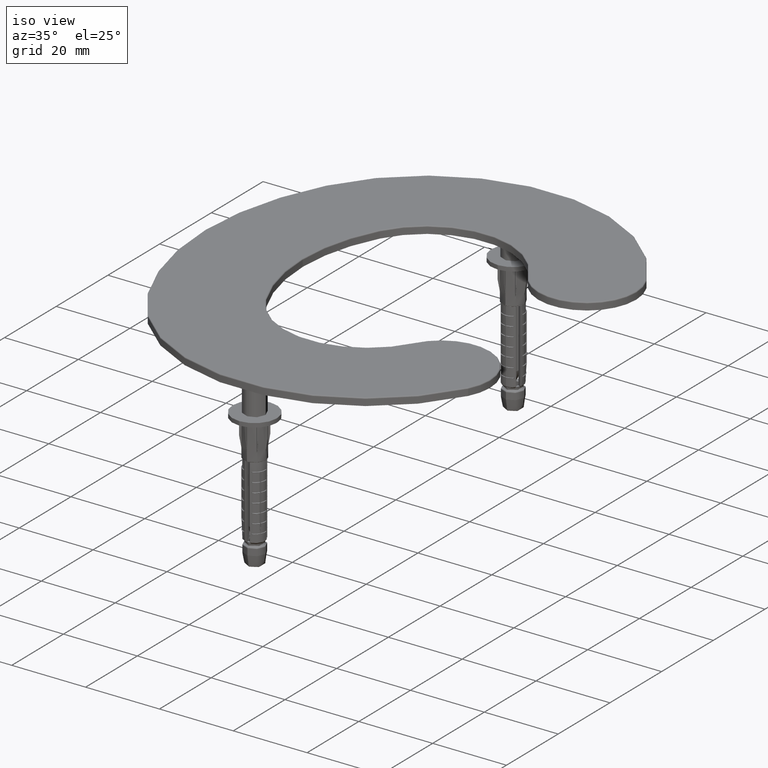
[diagram: clean part render]
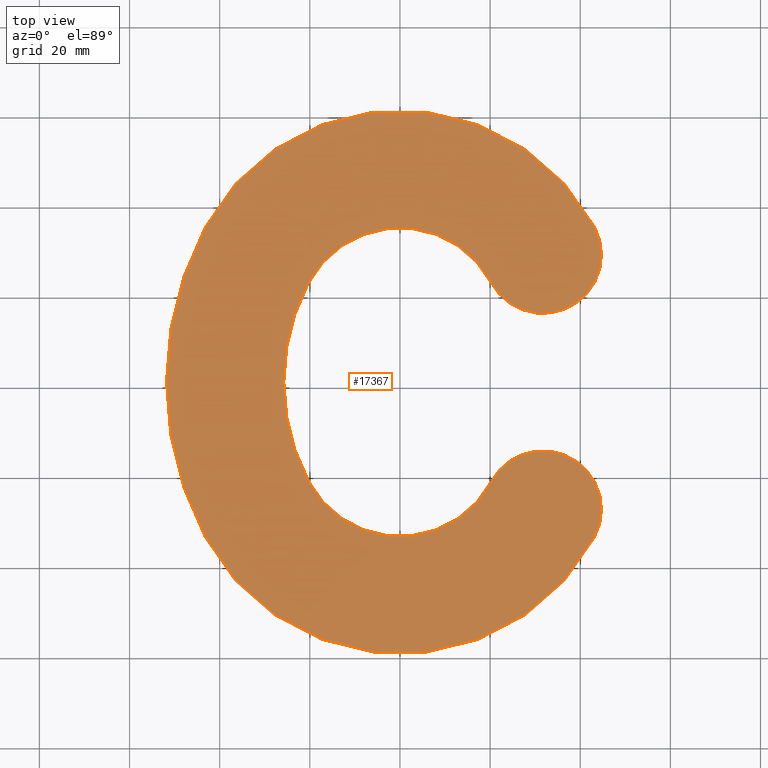
[diagram: tour spotlight — one face highlighted and labeled with its STEP entity id]
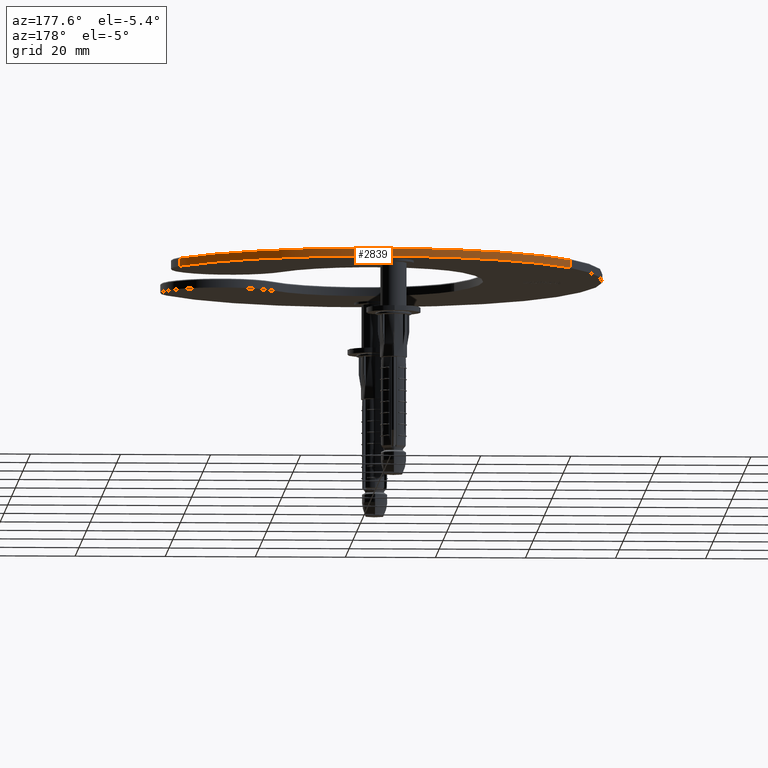
[diagram: tour spotlight — one face highlighted and labeled with its STEP entity id]
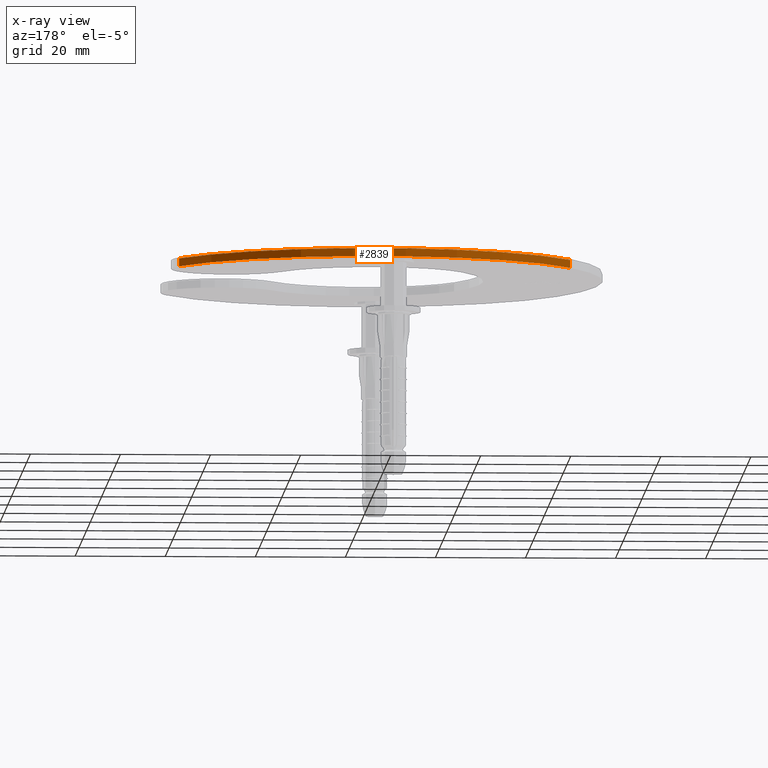
[diagram: x-ray of the same camera — body ghosted, this tour face saturated]
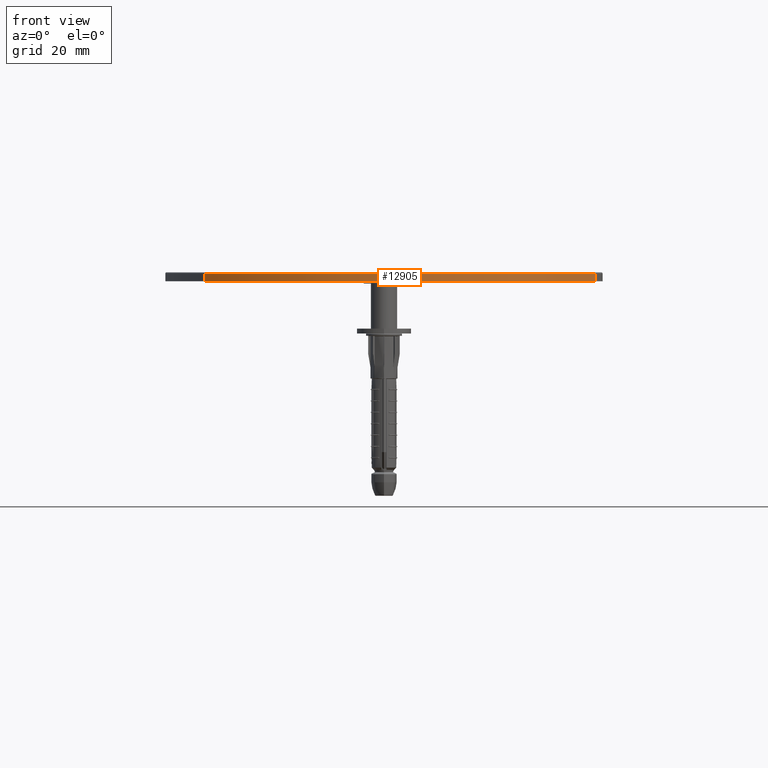
[diagram: tour spotlight — one face highlighted and labeled with its STEP entity id]
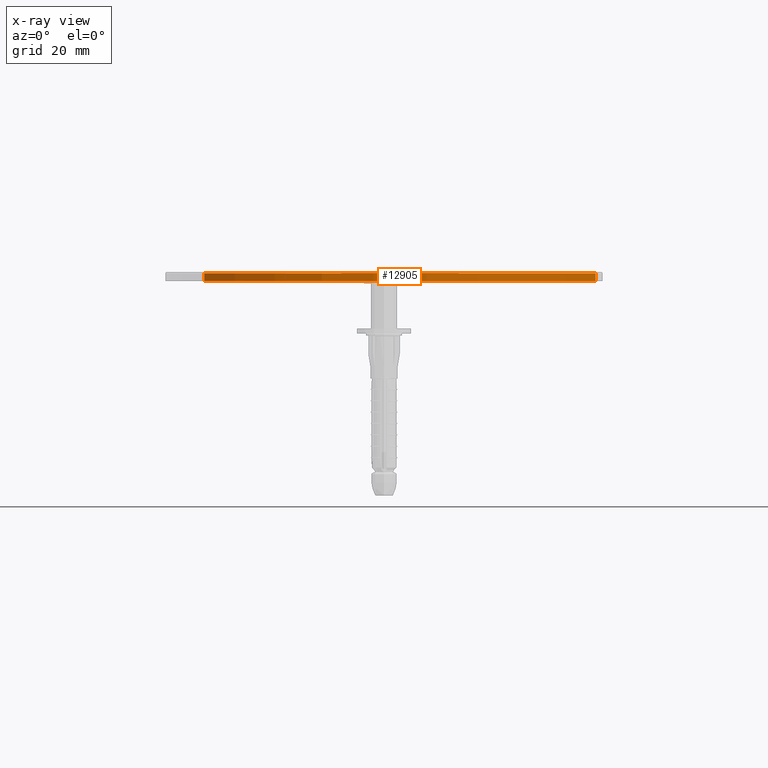
[diagram: x-ray of the same camera — body ghosted, this tour face saturated]
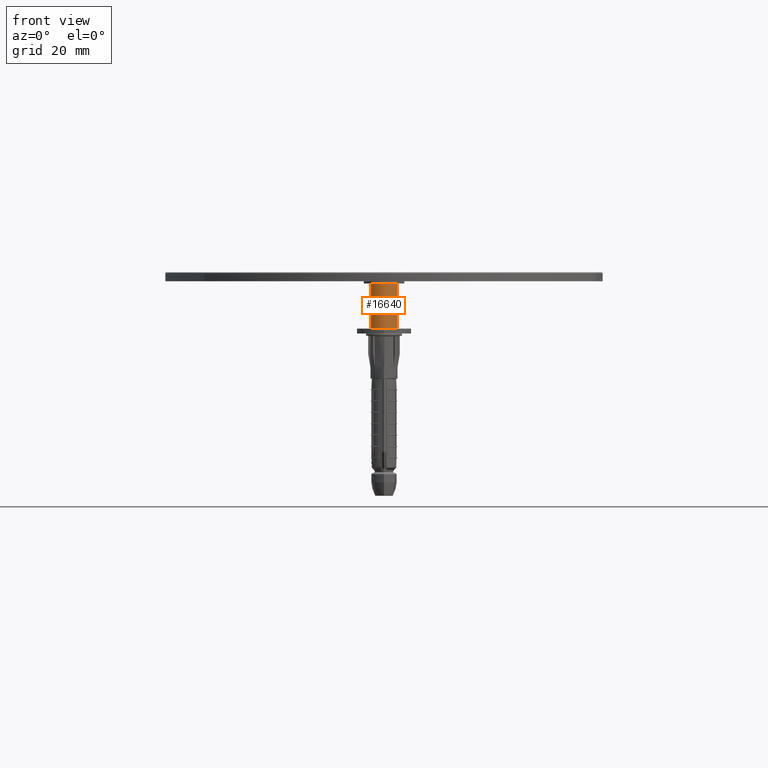
[diagram: tour spotlight — one face highlighted and labeled with its STEP entity id]
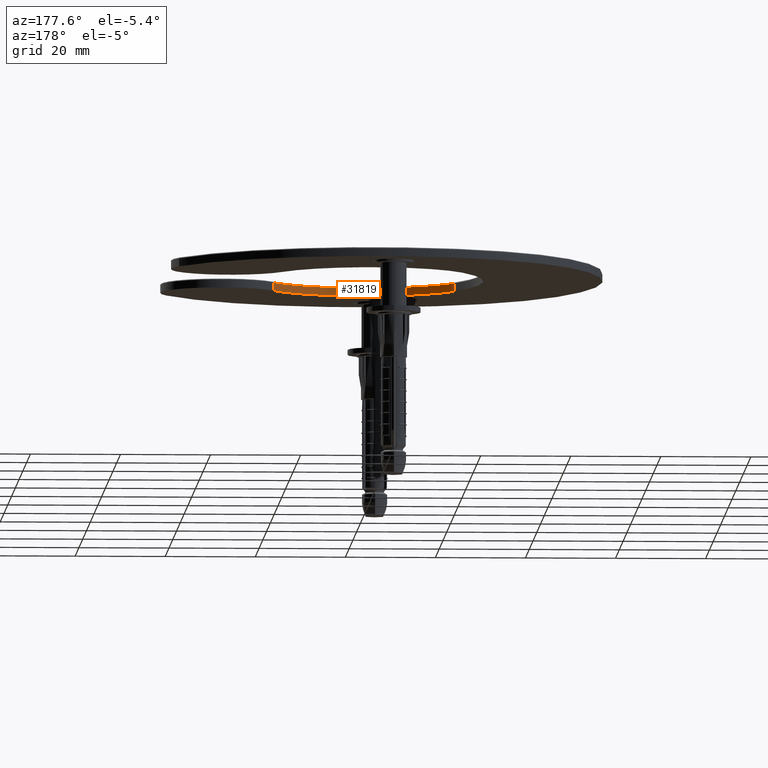
[diagram: tour spotlight — one face highlighted and labeled with its STEP entity id]
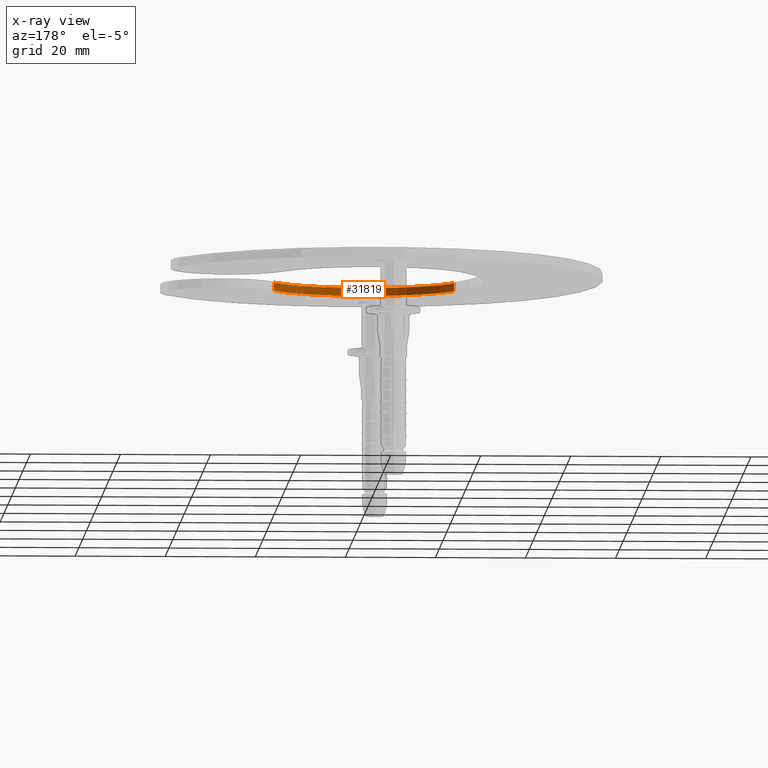
[diagram: x-ray of the same camera — body ghosted, this tour face saturated]
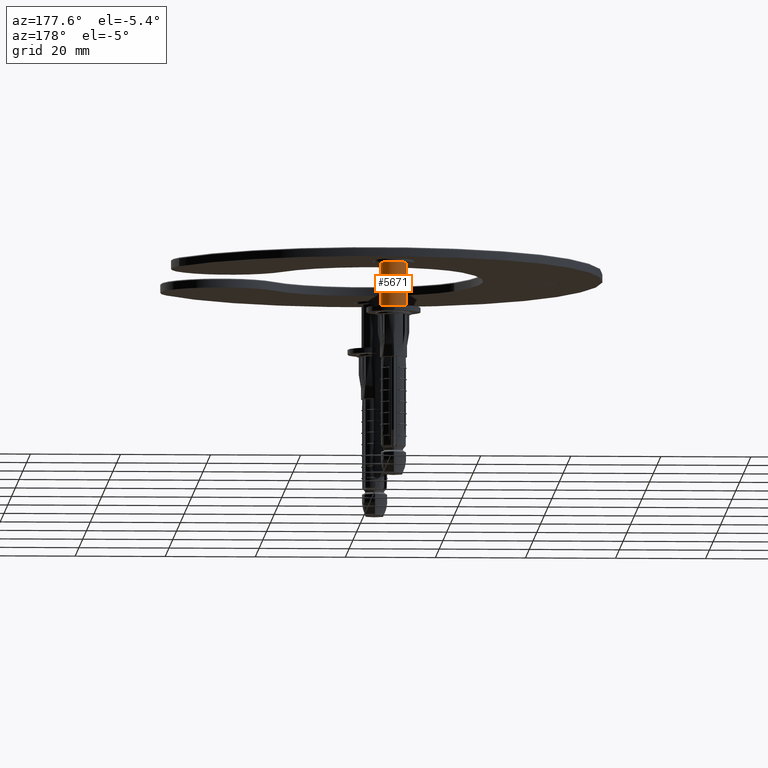
[diagram: tour spotlight — one face highlighted and labeled with its STEP entity id]
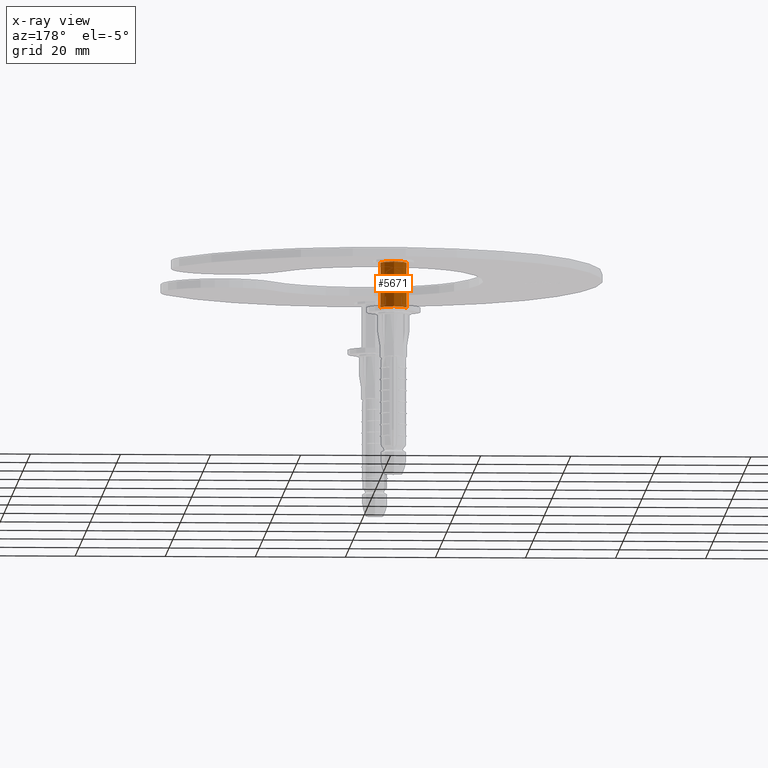
[diagram: x-ray of the same camera — body ghosted, this tour face saturated]
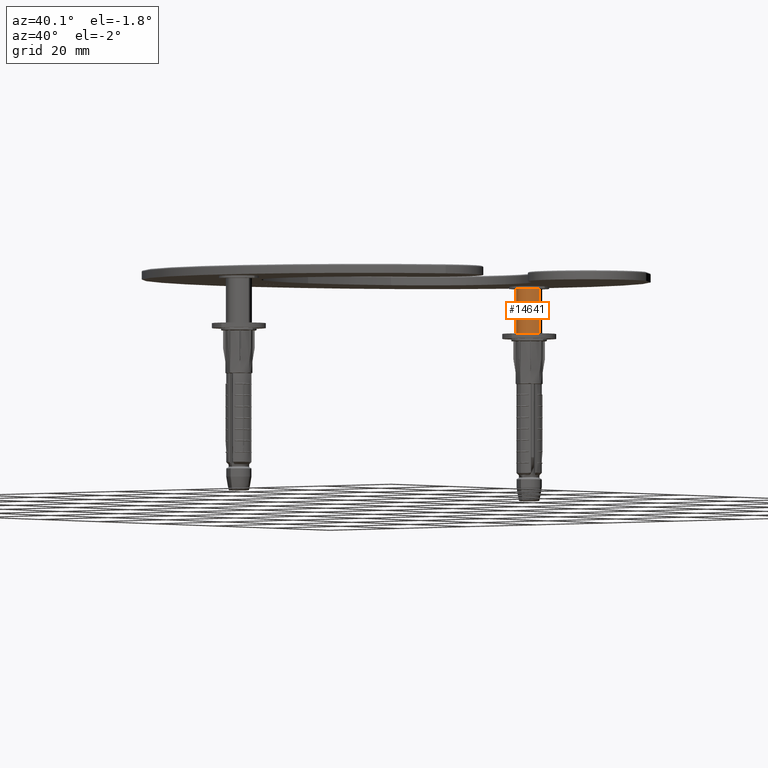
[diagram: tour spotlight — one face highlighted and labeled with its STEP entity id]
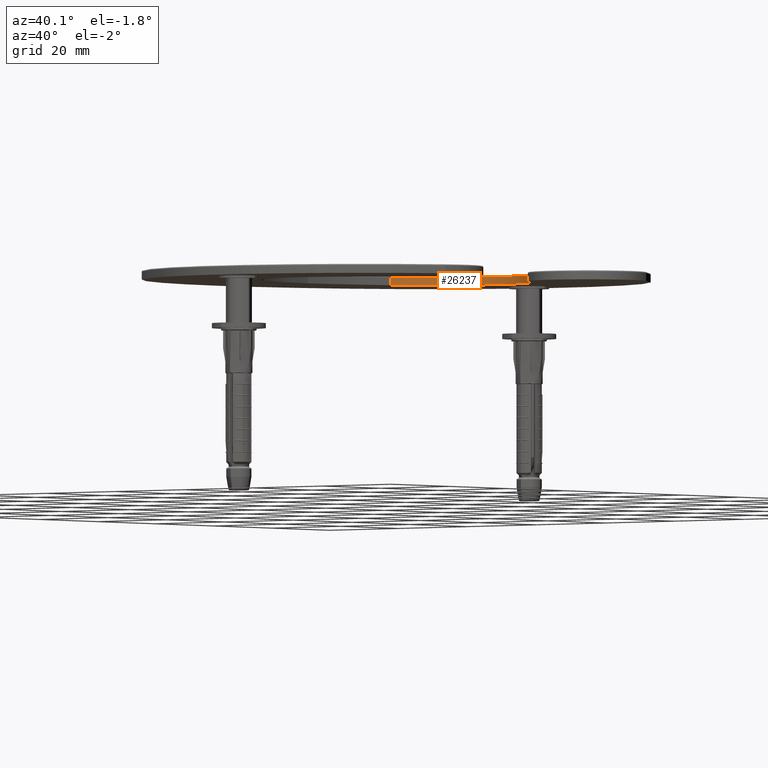
[diagram: tour spotlight — one face highlighted and labeled with its STEP entity id]
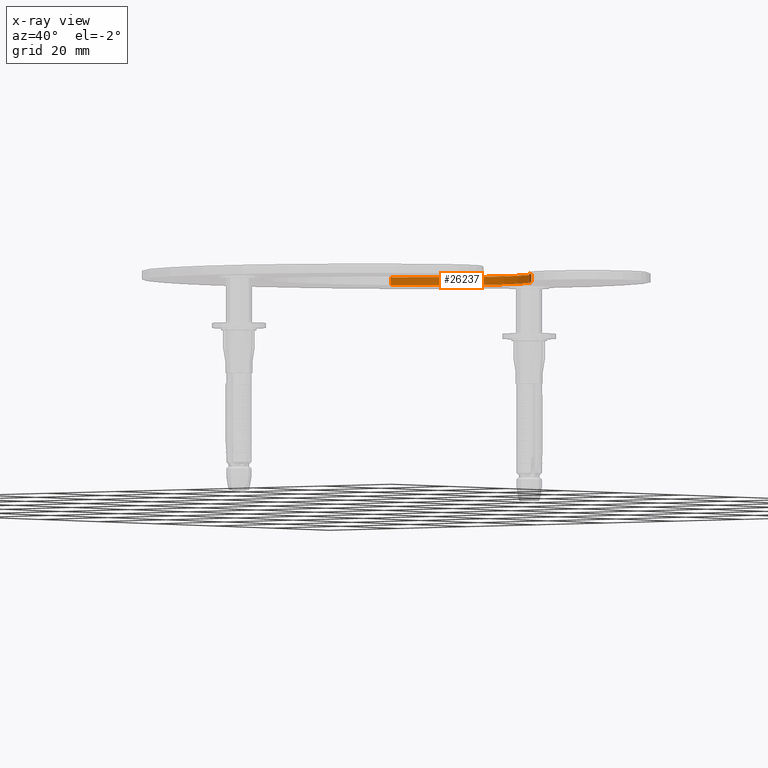
[diagram: x-ray of the same camera — body ghosted, this tour face saturated]
A machine part: a face-by-face anatomy tour. The part has 1552 B-rep faces; the first image is the clean iso view, then the 8 largest visible faces are spotlighted one at a time (largest first), each with its STEP entity span.

Face 1 — top view, entity #17367. In plain terms, the highlighted planar face has unit normal (0, 0, -1).
Definition (entity closure, byte-faithful):
#426 = EDGE_CURVE ( 'NONE', #1788, #738, #4415, .T. ) ;
#738 = VERTEX_POINT ( 'NONE', #26664 ) ;
#928 = EDGE_CURVE ( 'NONE', #25751, #23482, #12510, .T. ) ;
#981 = EDGE_LOOP ( 'NONE', ( #20586, #18401, #36317, #28207, #15869, #22467, #10876, #22206, #9181, #28675 ) ) ;
#1092 = CIRCLE ( 'NONE', #29873, 48.96074257467843438 ) ;
#1372 = AXIS2_PLACEMENT_3D ( 'NONE', #22003, #9933, #10338 ) ;
#1729 = DIRECTION ( 'NONE',  ( -0.000000000000000000, -0.000000000000000000, -1.000000000000000000 ) ) ;
#1788 = VERTEX_POINT ( 'NONE', #27625 ) ;
#2491 = EDGE_CURVE ( 'NONE', #23482, #14806, #1092, .T. ) ;
#3078 = DIRECTION ( 'NONE',  ( -1.000000000000000000, 0.000000000000000000, 0.000000000000000000 ) ) ;
#3381 = AXIS2_PLACEMENT_3D ( 'NONE', #30363, #18263, #12496 ) ;
#3480 = DIRECTION ( 'NONE',  ( -0.000000000000000000, 0.000000000000000000, -1.000000000000000000 ) ) ;
#3534 = CARTESIAN_POINT ( 'NONE',  ( 21.10635924224065008, 60.50000000000001421, 2.000000000000000000 ) ) ;
#4415 = CIRCLE ( 'NONE', #14483, 46.89660967152064330 ) ;
#5118 = DIRECTION ( 'NONE',  ( 0.000000000000000000, 0.000000000000000000, 1.000000000000000000 ) ) ;
#6224 = DIRECTION ( 'NONE',  ( -0.000000000000000000, -0.000000000000000000, -1.000000000000000000 ) ) ;
#6234 = AXIS2_PLACEMENT_3D ( 'NONE', #27234, #27752, #10925 ) ;
#6415 = DIRECTION ( 'NONE',  ( 0.000000000000000000, 0.000000000000000000, 1.000000000000000000 ) ) ;
#6528 = AXIS2_PLACEMENT_3D ( 'NONE', #19852, #31956, #13953 ) ;
#7324 = CARTESIAN_POINT ( 'NONE',  ( 43.17299295517751290, 94.88139878891368539, 2.000000000000000000 ) ) ;
#7932 = AXIS2_PLACEMENT_3D ( 'NONE', #22536, #1729, #25402 ) ;
#8994 = DIRECTION ( 'NONE',  ( -0.000000000000000000, -0.000000000000000000, -1.000000000000000000 ) ) ;
#9181 = ORIENTED_EDGE ( 'NONE', *, *, #37548, .T. ) ;
#9933 = DIRECTION ( 'NONE',  ( 0.000000000000000000, 0.000000000000000000, 1.000000000000000000 ) ) ;
#10338 = DIRECTION ( 'NONE',  ( -1.000000000000000000, 0.000000000000000000, 0.000000000000000000 ) ) ;
#10876 = ORIENTED_EDGE ( 'NONE', *, *, #14356, .T. ) ;
#10925 = DIRECTION ( 'NONE',  ( -1.000000000000000000, 0.000000000000000000, 0.000000000000000000 ) ) ;
#10998 = CIRCLE ( 'NONE', #7932, 46.89660967152064330 ) ;
#11091 = DIRECTION ( 'NONE',  ( -1.000000000000000000, -1.700683495963778800E-15, 0.000000000000000000 ) ) ;
#11364 = CIRCLE ( 'NONE', #3381, 22.96074257467839530 ) ;
#11486 = CIRCLE ( 'NONE', #6528, 72.89660967152070725 ) ;
#11497 = CARTESIAN_POINT ( 'NONE',  ( -43.17299295517753421, 26.11860121108634658, 2.000000000000000000 ) ) ;
#12354 = VERTEX_POINT ( 'NONE', #11497 ) ;
#12496 = DIRECTION ( 'NONE',  ( -1.000000000000000000, 0.000000000000000000, 0.000000000000000000 ) ) ;
#12510 = CIRCLE ( 'NONE', #23292, 13.00000000000000533 ) ;
#12778 = CARTESIAN_POINT ( 'NONE',  ( -43.17299295517752711, 94.88139878891365697, 2.000000000000000000 ) ) ;
#13908 = CARTESIAN_POINT ( 'NONE',  ( 20.24650618626254328, 82.61860121108632882, 2.000000000000000000 ) ) ;
#13953 = DIRECTION ( 'NONE',  ( -1.000000000000000000, -2.665268387444736658E-15, 0.000000000000000000 ) ) ;
#14356 = EDGE_CURVE ( 'NONE', #15458, #31508, #24094, .T. ) ;
#14483 = AXIS2_PLACEMENT_3D ( 'NONE', #3534, #8994, #27250 ) ;
#14706 = AXIS2_PLACEMENT_3D ( 'NONE', #21560, #6415, #33661 ) ;
#14806 = VERTEX_POINT ( 'NONE', #12778 ) ;
#14934 = CARTESIAN_POINT ( 'NONE',  ( 43.17299295517751290, 26.11860121108630395, 2.000000000000000000 ) ) ;
#15458 = VERTEX_POINT ( 'NONE', #14934 ) ;
#15861 = DIRECTION ( 'NONE',  ( -1.000000000000000000, 0.000000000000000000, 0.000000000000000000 ) ) ;
#15869 = ORIENTED_EDGE ( 'NONE', *, *, #34140, .T. ) ;
#17367 = ADVANCED_FACE ( 'NONE', ( #28576 ), #33631, .F. ) ;
#18263 = DIRECTION ( 'NONE',  ( -0.000000000000000000, -0.000000000000000000, -1.000000000000000000 ) ) ;
#18332 = VERTEX_POINT ( 'NONE', #33666 ) ;
#18401 = ORIENTED_EDGE ( 'NONE', *, *, #928, .T. ) ;
#18995 = DIRECTION ( 'NONE',  ( 0.000000000000000000, 0.000000000000000000, 1.000000000000000000 ) ) ;
#19852 = CARTESIAN_POINT ( 'NONE',  ( 21.10635924224065008, 60.50000000000001421, 2.000000000000000000 ) ) ;
#20350 = CARTESIAN_POINT ( 'NONE',  ( 20.24650618626257526, 38.38139878891366408, 2.000000000000000000 ) ) ;
#20522 = CARTESIAN_POINT ( 'NONE',  ( -4.963100635827628301E-21, 71.78925742532157983, 2.000000000000000000 ) ) ;
#20586 = ORIENTED_EDGE ( 'NONE', *, *, #25529, .T. ) ;
#21560 = CARTESIAN_POINT ( 'NONE',  ( -4.963100635827628301E-21, 49.21074257467843438, 2.000000000000000000 ) ) ;
#21785 = CARTESIAN_POINT ( 'NONE',  ( 31.70974957072004941, 88.75000000000000000, 2.000000000000000000 ) ) ;
#22003 = CARTESIAN_POINT ( 'NONE',  ( 31.70974957072005651, 32.25000000000000000, 2.000000000000000000 ) ) ;
#22206 = ORIENTED_EDGE ( 'NONE', *, *, #31605, .T. ) ;
#22467 = ORIENTED_EDGE ( 'NONE', *, *, #23170, .T. ) ;
#22536 = CARTESIAN_POINT ( 'NONE',  ( 21.10635924224065008, 60.50000000000001421, 2.000000000000000000 ) ) ;
#23098 = AXIS2_PLACEMENT_3D ( 'NONE', #29945, #6224, #3078 ) ;
#23170 = EDGE_CURVE ( 'NONE', #12354, #15458, #27007, .T. ) ;
#23292 = AXIS2_PLACEMENT_3D ( 'NONE', #21785, #18995, #37296 ) ;
#23482 = VERTEX_POINT ( 'NONE', #7324 ) ;
#24094 = CIRCLE ( 'NONE', #1372, 13.00000000000000533 ) ;
#25053 = CARTESIAN_POINT ( 'NONE',  ( 15.85487478536002470, 80.26962871266078992, 2.000000000000000000 ) ) ;
#25402 = DIRECTION ( 'NONE',  ( -1.000000000000000000, 0.000000000000000000, 0.000000000000000000 ) ) ;
#25529 = EDGE_CURVE ( 'NONE', #738, #25751, #11364, .T. ) ;
#25751 = VERTEX_POINT ( 'NONE', #13908 ) ;
#26408 = AXIS2_PLACEMENT_3D ( 'NONE', #25053, #3480, #15861 ) ;
#26664 = CARTESIAN_POINT ( 'NONE',  ( -20.24650618626259657, 82.61860121108622934, 2.000000000000000000 ) ) ;
#27007 = CIRCLE ( 'NONE', #14706, 48.96074257467844149 ) ;
#27234 = CARTESIAN_POINT ( 'NONE',  ( 21.10635924224065008, 60.50000000000001421, 2.000000000000000000 ) ) ;
#27250 = DIRECTION ( 'NONE',  ( -1.000000000000000000, 0.000000000000000000, 0.000000000000000000 ) ) ;
#27625 = CARTESIAN_POINT ( 'NONE',  ( -25.79025042927999323, 60.50000000000001421, 2.000000000000000000 ) ) ;
#27752 = DIRECTION ( 'NONE',  ( 0.000000000000000000, 0.000000000000000000, 1.000000000000000000 ) ) ;
#28207 = ORIENTED_EDGE ( 'NONE', *, *, #36836, .T. ) ;
#28576 = FACE_OUTER_BOUND ( 'NONE', #981, .T. ) ;
#28578 = CIRCLE ( 'NONE', #23098, 22.96074257467843083 ) ;
#28675 = ORIENTED_EDGE ( 'NONE', *, *, #426, .T. ) ;
#28725 = VERTEX_POINT ( 'NONE', #34544 ) ;
#29873 = AXIS2_PLACEMENT_3D ( 'NONE', #20522, #5118, #11091 ) ;
#29945 = CARTESIAN_POINT ( 'NONE',  ( -4.963100635827628301E-21, 49.21074257467843438, 2.000000000000000000 ) ) ;
#30347 = CIRCLE ( 'NONE', #6234, 72.89660967152070725 ) ;
#30363 = CARTESIAN_POINT ( 'NONE',  ( -4.963100635827628301E-21, 71.78925742532157983, 2.000000000000000000 ) ) ;
#31508 = VERTEX_POINT ( 'NONE', #20350 ) ;
#31605 = EDGE_CURVE ( 'NONE', #31508, #28725, #28578, .T. ) ;
#31956 = DIRECTION ( 'NONE',  ( 0.000000000000000000, 0.000000000000000000, 1.000000000000000000 ) ) ;
#33631 = PLANE ( 'NONE',  #26408 ) ;
#33661 = DIRECTION ( 'NONE',  ( -1.000000000000000000, 0.000000000000000000, 0.000000000000000000 ) ) ;
#33666 = CARTESIAN_POINT ( 'NONE',  ( -51.79025042928005007, 60.50000000000001421, 2.000000000000000000 ) ) ;
#34140 = EDGE_CURVE ( 'NONE', #18332, #12354, #30347, .T. ) ;
#34544 = CARTESIAN_POINT ( 'NONE',  ( -20.24650618626258236, 38.38139878891367829, 2.000000000000000000 ) ) ;
#36317 = ORIENTED_EDGE ( 'NONE', *, *, #2491, .T. ) ;
#36836 = EDGE_CURVE ( 'NONE', #14806, #18332, #11486, .T. ) ;
#37296 = DIRECTION ( 'NONE',  ( -1.000000000000000000, 0.000000000000000000, 0.000000000000000000 ) ) ;
#37548 = EDGE_CURVE ( 'NONE', #28725, #1788, #10998, .T. ) ;

Face 2 — auxiliary view, entity #2839. An x-ray twin of the same camera follows (body ghosted, this face saturated) — the face is partly hidden behind the body. In plain terms, the highlighted cylindrical surface (partial cylindrical patch) has radius 49.2107 mm, axis along (-0, -0, -1).
Definition (entity closure, byte-faithful):
#1579 = VERTEX_POINT ( 'NONE', #12264 ) ;
#1925 = DIRECTION ( 'NONE',  ( -0.000000000000000000, -0.000000000000000000, -1.000000000000000000 ) ) ;
#2839 = ADVANCED_FACE ( 'NONE', ( #17124 ), #31242, .T. ) ;
#2905 = DIRECTION ( 'NONE',  ( -1.000000000000000000, 0.000000000000000000, 0.000000000000000000 ) ) ;
#3227 = DIRECTION ( 'NONE',  ( 0.000000000000000000, 0.000000000000000000, 1.000000000000000000 ) ) ;
#3542 = LINE ( 'NONE', #10565, #19105 ) ;
#3806 = ORIENTED_EDGE ( 'NONE', *, *, #19621, .F. ) ;
#3900 = AXIS2_PLACEMENT_3D ( 'NONE', #38971, #26600, #2905 ) ;
#4960 = CARTESIAN_POINT ( 'NONE',  ( -43.39343994334019072, 94.99931030408509969, 1.750000000000000000 ) ) ;
#5050 = CIRCLE ( 'NONE', #29899, 49.21074257467843438 ) ;
#7185 = EDGE_CURVE ( 'NONE', #22246, #1579, #24368, .T. ) ;
#7308 = ORIENTED_EDGE ( 'NONE', *, *, #31326, .T. ) ;
#7925 = CARTESIAN_POINT ( 'NONE',  ( 43.39343994334015520, 94.99931030408511390, 2.000000000000000000 ) ) ;
#10565 = CARTESIAN_POINT ( 'NONE',  ( -43.39343994334019072, 94.99931030408509969, 2.000000000000000000 ) ) ;
#10828 = DIRECTION ( 'NONE',  ( -0.000000000000000000, -0.000000000000000000, -1.000000000000000000 ) ) ;
#11055 = ORIENTED_EDGE ( 'NONE', *, *, #37655, .T. ) ;
#11460 = ORIENTED_EDGE ( 'NONE', *, *, #7185, .T. ) ;
#12238 = DIRECTION ( 'NONE',  ( -1.000000000000000000, 0.000000000000000000, 0.000000000000000000 ) ) ;
#12264 = CARTESIAN_POINT ( 'NONE',  ( -43.39343994334019072, 94.99931030408509969, 0.000000000000000000 ) ) ;
#13915 = DIRECTION ( 'NONE',  ( -1.000000000000000000, 0.000000000000000000, 0.000000000000000000 ) ) ;
#17070 = CARTESIAN_POINT ( 'NONE',  ( -4.963100635827628301E-21, 71.78925742532157983, 1.750000000000000000 ) ) ;
#17124 = FACE_OUTER_BOUND ( 'NONE', #31429, .T. ) ;
#19105 = VECTOR ( 'NONE', #10828, 1000.000000000000000 ) ;
#19621 = EDGE_CURVE ( 'NONE', #22424, #1579, #3542, .T. ) ;
#19700 = VERTEX_POINT ( 'NONE', #19853 ) ;
#19853 = CARTESIAN_POINT ( 'NONE',  ( 43.39343994334015520, 94.99931030408511390, 1.750000000000000000 ) ) ;
#22246 = VERTEX_POINT ( 'NONE', #37588 ) ;
#22424 = VERTEX_POINT ( 'NONE', #4960 ) ;
#23179 = VECTOR ( 'NONE', #28983, 1000.000000000000000 ) ;
#24169 = CARTESIAN_POINT ( 'NONE',  ( -4.963100635827628301E-21, 71.78925742532157983, 0.000000000000000000 ) ) ;
#24368 = CIRCLE ( 'NONE', #31760, 49.21074257467843438 ) ;
#26600 = DIRECTION ( 'NONE',  ( -0.000000000000000000, -0.000000000000000000, -1.000000000000000000 ) ) ;
#28364 = LINE ( 'NONE', #7925, #23179 ) ;
#28983 = DIRECTION ( 'NONE',  ( -0.000000000000000000, -0.000000000000000000, -1.000000000000000000 ) ) ;
#29899 = AXIS2_PLACEMENT_3D ( 'NONE', #17070, #1925, #13915 ) ;
#31242 = CYLINDRICAL_SURFACE ( 'NONE', #3900, 49.21074257467843438 ) ;
#31326 = EDGE_CURVE ( 'NONE', #22424, #19700, #5050, .T. ) ;
#31429 = EDGE_LOOP ( 'NONE', ( #3806, #7308, #11055, #11460 ) ) ;
#31760 = AXIS2_PLACEMENT_3D ( 'NONE', #24169, #3227, #12238 ) ;
#37588 = CARTESIAN_POINT ( 'NONE',  ( 43.39343994334015520, 94.99931030408511390, 0.000000000000000000 ) ) ;
#37655 = EDGE_CURVE ( 'NONE', #19700, #22246, #28364, .T. ) ;
#38971 = CARTESIAN_POINT ( 'NONE',  ( -4.963100635827628301E-21, 71.78925742532157983, 2.000000000000000000 ) ) ;

Face 3 — front view, entity #12905. An x-ray twin of the same camera follows (body ghosted, this face saturated) — the face is partly hidden behind the body. In plain terms, the highlighted cylindrical surface (partial cylindrical patch) has radius 49.2107 mm, axis along (-0, -0, -1).
Definition (entity closure, byte-faithful):
#86 = CARTESIAN_POINT ( 'NONE',  ( -43.39343994334019072, 26.00068969591492163, 2.000000000000000000 ) ) ;
#1053 = ORIENTED_EDGE ( 'NONE', *, *, #25071, .T. ) ;
#1178 = DIRECTION ( 'NONE',  ( -0.000000000000000000, -0.000000000000000000, -1.000000000000000000 ) ) ;
#2892 = CYLINDRICAL_SURFACE ( 'NONE', #22543, 49.21074257467844149 ) ;
#5733 = FACE_OUTER_BOUND ( 'NONE', #34161, .T. ) ;
#7381 = DIRECTION ( 'NONE',  ( -1.000000000000000000, 0.000000000000000000, 0.000000000000000000 ) ) ;
#8033 = AXIS2_PLACEMENT_3D ( 'NONE', #25207, #22211, #10665 ) ;
#8987 = AXIS2_PLACEMENT_3D ( 'NONE', #36817, #30652, #36306 ) ;
#10665 = DIRECTION ( 'NONE',  ( 1.000000000000000000, 0.000000000000000000, 0.000000000000000000 ) ) ;
#12415 = VECTOR ( 'NONE', #22893, 1000.000000000000000 ) ;
#12905 = ADVANCED_FACE ( 'NONE', ( #5733 ), #2892, .T. ) ;
#13659 = CARTESIAN_POINT ( 'NONE',  ( -43.39343994334019072, 26.00068969591492163, 1.750000000000000000 ) ) ;
#16379 = ORIENTED_EDGE ( 'NONE', *, *, #28808, .T. ) ;
#17447 = CARTESIAN_POINT ( 'NONE',  ( 43.39343994334015520, 26.00068969591488610, 1.750000000000000000 ) ) ;
#17871 = ORIENTED_EDGE ( 'NONE', *, *, #36847, .F. ) ;
#18426 = EDGE_CURVE ( 'NONE', #36619, #29508, #24804, .T. ) ;
#20114 = VERTEX_POINT ( 'NONE', #17447 ) ;
#22211 = DIRECTION ( 'NONE',  ( 0.000000000000000000, 0.000000000000000000, 1.000000000000000000 ) ) ;
#22493 = ORIENTED_EDGE ( 'NONE', *, *, #18426, .T. ) ;
#22543 = AXIS2_PLACEMENT_3D ( 'NONE', #28316, #1178, #7381 ) ;
#22893 = DIRECTION ( 'NONE',  ( -0.000000000000000000, -0.000000000000000000, -1.000000000000000000 ) ) ;
#24804 = CIRCLE ( 'NONE', #8033, 49.21074257467844149 ) ;
#24994 = CIRCLE ( 'NONE', #8987, 49.21074257467844149 ) ;
#25071 = EDGE_CURVE ( 'NONE', #20114, #31403, #24994, .T. ) ;
#25207 = CARTESIAN_POINT ( 'NONE',  ( -4.963100635827628301E-21, 49.21074257467843438, 0.000000000000000000 ) ) ;
#26332 = CARTESIAN_POINT ( 'NONE',  ( -43.39343994334019072, 26.00068969591492163, 0.000000000000000000 ) ) ;
#28023 = CARTESIAN_POINT ( 'NONE',  ( 43.39343994334015520, 26.00068969591488610, 2.000000000000000000 ) ) ;
#28205 = VECTOR ( 'NONE', #33194, 1000.000000000000000 ) ;
#28316 = CARTESIAN_POINT ( 'NONE',  ( -4.963100635827628301E-21, 49.21074257467843438, 2.000000000000000000 ) ) ;
#28402 = LINE ( 'NONE', #28023, #12415 ) ;
#28808 = EDGE_CURVE ( 'NONE', #31403, #36619, #31972, .T. ) ;
#29508 = VERTEX_POINT ( 'NONE', #34472 ) ;
#30652 = DIRECTION ( 'NONE',  ( -0.000000000000000000, -0.000000000000000000, -1.000000000000000000 ) ) ;
#31403 = VERTEX_POINT ( 'NONE', #13659 ) ;
#31972 = LINE ( 'NONE', #86, #28205 ) ;
#33194 = DIRECTION ( 'NONE',  ( -0.000000000000000000, -0.000000000000000000, -1.000000000000000000 ) ) ;
#34161 = EDGE_LOOP ( 'NONE', ( #17871, #1053, #16379, #22493 ) ) ;
#34472 = CARTESIAN_POINT ( 'NONE',  ( 43.39343994334015520, 26.00068969591488610, 0.000000000000000000 ) ) ;
#36306 = DIRECTION ( 'NONE',  ( -1.000000000000000000, 0.000000000000000000, 0.000000000000000000 ) ) ;
#36619 = VERTEX_POINT ( 'NONE', #26332 ) ;
#36817 = CARTESIAN_POINT ( 'NONE',  ( -4.963100635827628301E-21, 49.21074257467843438, 1.750000000000000000 ) ) ;
#36847 = EDGE_CURVE ( 'NONE', #20114, #29508, #28402, .T. ) ;

Face 4 — front view, entity #16640. In plain terms, the highlighted cylindrical surface (edge-blend (fillet) strip) has radius 2.9 mm, axis along (0, 0, 1).
Definition (entity closure, byte-faithful):
#806 = VECTOR ( 'NONE', #9659, 1000.000000000000000 ) ;
#1212 = VERTEX_POINT ( 'NONE', #36213 ) ;
#1243 = DIRECTION ( 'NONE',  ( -0.000000000000000000, -0.000000000000000000, 1.000000000000000000 ) ) ;
#1647 = CARTESIAN_POINT ( 'NONE',  ( -0.6402504292799884311, 10.50000000000000888, -10.50000000000000000 ) ) ;
#2036 = LINE ( 'NONE', #1647, #18495 ) ;
#2385 = DIRECTION ( 'NONE',  ( -1.000000000000000000, 0.000000000000000000, 0.000000000000000000 ) ) ;
#2794 = FACE_OUTER_BOUND ( 'NONE', #13183, .T. ) ;
#6760 = EDGE_CURVE ( 'NONE', #1212, #18670, #36599, .T. ) ;
#7388 = ORIENTED_EDGE ( 'NONE', *, *, #37191, .T. ) ;
#7657 = DIRECTION ( 'NONE',  ( 0.000000000000000000, 0.000000000000000000, -1.000000000000000000 ) ) ;
#7820 = EDGE_CURVE ( 'NONE', #18670, #19438, #25249, .T. ) ;
#9659 = DIRECTION ( 'NONE',  ( -0.000000000000000000, -0.000000000000000000, 1.000000000000000000 ) ) ;
#10848 = CYLINDRICAL_SURFACE ( 'NONE', #28889, 2.899999999999999911 ) ;
#13183 = EDGE_LOOP ( 'NONE', ( #23224, #23531, #7388, #37318 ) ) ;
#15094 = CARTESIAN_POINT ( 'NONE',  ( -6.440250429279988253, 10.50000000000000888, -10.50000000000000000 ) ) ;
#16640 = ADVANCED_FACE ( 'NONE', ( #2794 ), #10848, .T. ) ;
#16878 = EDGE_CURVE ( 'NONE', #27325, #19438, #30088, .T. ) ;
#18495 = VECTOR ( 'NONE', #1243, 1000.000000000000000 ) ;
#18580 = CARTESIAN_POINT ( 'NONE',  ( -6.440250429279988253, 10.50000000000000888, -10.50000000000000000 ) ) ;
#18670 = VERTEX_POINT ( 'NONE', #15094 ) ;
#19116 = CARTESIAN_POINT ( 'NONE',  ( -0.6402504292799884311, 10.50000000000000888, -0.5000000000000000000 ) ) ;
#19438 = VERTEX_POINT ( 'NONE', #38972 ) ;
#23063 = CARTESIAN_POINT ( 'NONE',  ( -3.540250429279988342, 10.50000000000000888, -10.50000000000000000 ) ) ;
#23224 = ORIENTED_EDGE ( 'NONE', *, *, #7820, .F. ) ;
#23531 = ORIENTED_EDGE ( 'NONE', *, *, #6760, .F. ) ;
#23930 = AXIS2_PLACEMENT_3D ( 'NONE', #32116, #35151, #2385 ) ;
#25249 = LINE ( 'NONE', #18580, #806 ) ;
#26199 = DIRECTION ( 'NONE',  ( 1.000000000000000000, 0.000000000000000000, 0.000000000000000000 ) ) ;
#27325 = VERTEX_POINT ( 'NONE', #19116 ) ;
#28654 = AXIS2_PLACEMENT_3D ( 'NONE', #28736, #7657, #28859 ) ;
#28736 = CARTESIAN_POINT ( 'NONE',  ( -3.540250429279988342, 10.50000000000000888, -0.5000000000000000000 ) ) ;
#28859 = DIRECTION ( 'NONE',  ( -1.000000000000000000, 0.000000000000000000, 0.000000000000000000 ) ) ;
#28889 = AXIS2_PLACEMENT_3D ( 'NONE', #23063, #32111, #26199 ) ;
#30088 = CIRCLE ( 'NONE', #28654, 2.899999999999999911 ) ;
#32111 = DIRECTION ( 'NONE',  ( -0.000000000000000000, -0.000000000000000000, 1.000000000000000000 ) ) ;
#32116 = CARTESIAN_POINT ( 'NONE',  ( -3.540250429279988342, 10.50000000000000888, -10.50000000000000000 ) ) ;
#35151 = DIRECTION ( 'NONE',  ( 0.000000000000000000, 0.000000000000000000, -1.000000000000000000 ) ) ;
#36213 = CARTESIAN_POINT ( 'NONE',  ( -0.6402504292799884311, 10.50000000000000888, -10.50000000000000000 ) ) ;
#36599 = CIRCLE ( 'NONE', #23930, 2.899999999999999911 ) ;
#37191 = EDGE_CURVE ( 'NONE', #1212, #27325, #2036, .T. ) ;
#37318 = ORIENTED_EDGE ( 'NONE', *, *, #16878, .T. ) ;
#38972 = CARTESIAN_POINT ( 'NONE',  ( -6.440250429279988253, 10.50000000000000888, -0.5000000000000000000 ) ) ;

Face 5 — auxiliary view, entity #31819. An x-ray twin of the same camera follows (body ghosted, this face saturated) — the face is partly hidden behind the body. In plain terms, the highlighted cylindrical surface (partial cylindrical patch) has radius 22.7107 mm, axis along (-0, -0, -1).
Definition (entity closure, byte-faithful):
#2031 = CIRCLE ( 'NONE', #11685, 22.71074257467843083 ) ;
#3508 = EDGE_CURVE ( 'NONE', #27558, #37876, #33995, .T. ) ;
#4162 = DIRECTION ( 'NONE',  ( -0.000000000000000000, -0.000000000000000000, -1.000000000000000000 ) ) ;
#4314 = CARTESIAN_POINT ( 'NONE',  ( -20.02605919809994006, 38.49931030408509969, 0.000000000000000000 ) ) ;
#4773 = EDGE_LOOP ( 'NONE', ( #13101, #31276, #21224, #8409 ) ) ;
#5771 = EDGE_CURVE ( 'NONE', #17698, #27558, #17465, .T. ) ;
#6144 = VECTOR ( 'NONE', #33884, 1000.000000000000000 ) ;
#6681 = AXIS2_PLACEMENT_3D ( 'NONE', #37326, #4162, #25196 ) ;
#6807 = CARTESIAN_POINT ( 'NONE',  ( 20.02605919809992940, 38.49931030408507837, 2.000000000000000000 ) ) ;
#7088 = DIRECTION ( 'NONE',  ( -0.000000000000000000, -0.000000000000000000, -1.000000000000000000 ) ) ;
#8409 = ORIENTED_EDGE ( 'NONE', *, *, #3508, .T. ) ;
#9024 = CARTESIAN_POINT ( 'NONE',  ( 20.02605919809992940, 38.49931030408507837, 0.000000000000000000 ) ) ;
#9476 = VECTOR ( 'NONE', #7088, 1000.000000000000000 ) ;
#11685 = AXIS2_PLACEMENT_3D ( 'NONE', #35482, #32844, #35361 ) ;
#11706 = EDGE_CURVE ( 'NONE', #17841, #17698, #2031, .T. ) ;
#13101 = ORIENTED_EDGE ( 'NONE', *, *, #14044, .F. ) ;
#14044 = EDGE_CURVE ( 'NONE', #17841, #37876, #34435, .T. ) ;
#17465 = LINE ( 'NONE', #6807, #9476 ) ;
#17698 = VERTEX_POINT ( 'NONE', #29856 ) ;
#17841 = VERTEX_POINT ( 'NONE', #27230 ) ;
#18189 = FACE_OUTER_BOUND ( 'NONE', #4773, .T. ) ;
#18667 = CYLINDRICAL_SURFACE ( 'NONE', #29666, 22.71074257467843083 ) ;
#21224 = ORIENTED_EDGE ( 'NONE', *, *, #5771, .T. ) ;
#22169 = CARTESIAN_POINT ( 'NONE',  ( -20.02605919809994006, 38.49931030408509969, 2.000000000000000000 ) ) ;
#25196 = DIRECTION ( 'NONE',  ( 1.000000000000000000, 0.000000000000000000, 0.000000000000000000 ) ) ;
#26084 = DIRECTION ( 'NONE',  ( -0.000000000000000000, -0.000000000000000000, -1.000000000000000000 ) ) ;
#27230 = CARTESIAN_POINT ( 'NONE',  ( -20.02605919809994006, 38.49931030408509969, 1.750000000000000000 ) ) ;
#27558 = VERTEX_POINT ( 'NONE', #9024 ) ;
#28996 = DIRECTION ( 'NONE',  ( -1.000000000000000000, 0.000000000000000000, 0.000000000000000000 ) ) ;
#29666 = AXIS2_PLACEMENT_3D ( 'NONE', #32007, #26084, #28996 ) ;
#29856 = CARTESIAN_POINT ( 'NONE',  ( 20.02605919809992940, 38.49931030408507837, 1.750000000000000000 ) ) ;
#31276 = ORIENTED_EDGE ( 'NONE', *, *, #11706, .T. ) ;
#31819 = ADVANCED_FACE ( 'NONE', ( #18189 ), #18667, .F. ) ;
#32007 = CARTESIAN_POINT ( 'NONE',  ( -4.963100635827628301E-21, 49.21074257467843438, 2.000000000000000000 ) ) ;
#32844 = DIRECTION ( 'NONE',  ( 0.000000000000000000, 0.000000000000000000, 1.000000000000000000 ) ) ;
#33884 = DIRECTION ( 'NONE',  ( -0.000000000000000000, -0.000000000000000000, -1.000000000000000000 ) ) ;
#33995 = CIRCLE ( 'NONE', #6681, 22.71074257467843083 ) ;
#34435 = LINE ( 'NONE', #22169, #6144 ) ;
#35361 = DIRECTION ( 'NONE',  ( -1.000000000000000000, 0.000000000000000000, 0.000000000000000000 ) ) ;
#35482 = CARTESIAN_POINT ( 'NONE',  ( -4.963100635827628301E-21, 49.21074257467843438, 1.750000000000000000 ) ) ;
#37326 = CARTESIAN_POINT ( 'NONE',  ( -4.963100635827628301E-21, 49.21074257467843438, 0.000000000000000000 ) ) ;
#37876 = VERTEX_POINT ( 'NONE', #4314 ) ;

Face 6 — auxiliary view, entity #5671. An x-ray twin of the same camera follows (body ghosted, this face saturated) — the face is partly hidden behind the body. In plain terms, the highlighted cylindrical surface (edge-blend (fillet) strip) has radius 2.9 mm, axis along (0, 0, 1).
Definition (entity closure, byte-faithful):
#501 = CARTESIAN_POINT ( 'NONE',  ( -6.440250429279988253, 110.5000000000000142, -10.50000000000000000 ) ) ;
#2370 = CIRCLE ( 'NONE', #16252, 2.899999999999999911 ) ;
#3321 = DIRECTION ( 'NONE',  ( 0.000000000000000000, 0.000000000000000000, -1.000000000000000000 ) ) ;
#3636 = DIRECTION ( 'NONE',  ( -0.000000000000000000, -0.000000000000000000, 1.000000000000000000 ) ) ;
#4904 = ORIENTED_EDGE ( 'NONE', *, *, #24693, .F. ) ;
#5671 = ADVANCED_FACE ( 'NONE', ( #22636 ), #36280, .T. ) ;
#6653 = CARTESIAN_POINT ( 'NONE',  ( -0.6402504292799884311, 110.5000000000000142, -10.50000000000000000 ) ) ;
#6677 = DIRECTION ( 'NONE',  ( 1.000000000000000000, 0.000000000000000000, 0.000000000000000000 ) ) ;
#7244 = CARTESIAN_POINT ( 'NONE',  ( -3.540250429279988342, 110.5000000000000142, -0.5000000000000000000 ) ) ;
#7604 = VECTOR ( 'NONE', #12489, 1000.000000000000000 ) ;
#7660 = ORIENTED_EDGE ( 'NONE', *, *, #23188, .T. ) ;
#8815 = CARTESIAN_POINT ( 'NONE',  ( -6.440250429279988253, 110.5000000000000142, -0.5000000000000000000 ) ) ;
#11522 = CARTESIAN_POINT ( 'NONE',  ( -0.6402504292799884311, 110.5000000000000142, -0.5000000000000000000 ) ) ;
#12489 = DIRECTION ( 'NONE',  ( -0.000000000000000000, -0.000000000000000000, 1.000000000000000000 ) ) ;
#13074 = DIRECTION ( 'NONE',  ( 0.000000000000000000, 0.000000000000000000, -1.000000000000000000 ) ) ;
#14394 = EDGE_CURVE ( 'NONE', #30729, #37407, #2370, .T. ) ;
#15258 = CARTESIAN_POINT ( 'NONE',  ( -3.540250429279988342, 110.5000000000000142, -10.50000000000000000 ) ) ;
#15641 = DIRECTION ( 'NONE',  ( -0.000000000000000000, -0.000000000000000000, 1.000000000000000000 ) ) ;
#15689 = VECTOR ( 'NONE', #15641, 1000.000000000000000 ) ;
#15940 = EDGE_LOOP ( 'NONE', ( #24950, #7660, #24064, #4904 ) ) ;
#16085 = AXIS2_PLACEMENT_3D ( 'NONE', #15258, #3636, #6677 ) ;
#16252 = AXIS2_PLACEMENT_3D ( 'NONE', #37265, #13074, #34110 ) ;
#17096 = LINE ( 'NONE', #501, #15689 ) ;
#17318 = VERTEX_POINT ( 'NONE', #8815 ) ;
#18672 = CARTESIAN_POINT ( 'NONE',  ( -6.440250429279988253, 110.5000000000000142, -10.50000000000000000 ) ) ;
#20997 = VERTEX_POINT ( 'NONE', #11522 ) ;
#22636 = FACE_OUTER_BOUND ( 'NONE', #15940, .T. ) ;
#23188 = EDGE_CURVE ( 'NONE', #30729, #17318, #17096, .T. ) ;
#24064 = ORIENTED_EDGE ( 'NONE', *, *, #24121, .T. ) ;
#24121 = EDGE_CURVE ( 'NONE', #17318, #20997, #24593, .T. ) ;
#24593 = CIRCLE ( 'NONE', #36138, 2.899999999999999911 ) ;
#24693 = EDGE_CURVE ( 'NONE', #37407, #20997, #31625, .T. ) ;
#24950 = ORIENTED_EDGE ( 'NONE', *, *, #14394, .F. ) ;
#30729 = VERTEX_POINT ( 'NONE', #18672 ) ;
#31625 = LINE ( 'NONE', #6653, #7604 ) ;
#34110 = DIRECTION ( 'NONE',  ( -1.000000000000000000, 0.000000000000000000, 0.000000000000000000 ) ) ;
#34673 = DIRECTION ( 'NONE',  ( -1.000000000000000000, 0.000000000000000000, 0.000000000000000000 ) ) ;
#36138 = AXIS2_PLACEMENT_3D ( 'NONE', #7244, #3321, #34673 ) ;
#36280 = CYLINDRICAL_SURFACE ( 'NONE', #16085, 2.899999999999999911 ) ;
#37265 = CARTESIAN_POINT ( 'NONE',  ( -3.540250429279988342, 110.5000000000000142, -10.50000000000000000 ) ) ;
#37407 = VERTEX_POINT ( 'NONE', #38867 ) ;
#38867 = CARTESIAN_POINT ( 'NONE',  ( -0.6402504292799884311, 110.5000000000000142, -10.50000000000000000 ) ) ;

Face 7 — auxiliary view, entity #14641. In plain terms, the highlighted cylindrical surface (edge-blend (fillet) strip) has radius 2.9 mm, axis along (0, 0, 1).
Definition (entity closure, byte-faithful):
#501 = CARTESIAN_POINT ( 'NONE',  ( -6.440250429279988253, 110.5000000000000142, -10.50000000000000000 ) ) ;
#3275 = DIRECTION ( 'NONE',  ( 1.000000000000000000, 0.000000000000000000, 0.000000000000000000 ) ) ;
#3822 = CARTESIAN_POINT ( 'NONE',  ( -3.540250429279988342, 110.5000000000000142, -0.5000000000000000000 ) ) ;
#3977 = CIRCLE ( 'NONE', #31209, 2.899999999999999911 ) ;
#4282 = EDGE_CURVE ( 'NONE', #20997, #17318, #20345, .T. ) ;
#6653 = CARTESIAN_POINT ( 'NONE',  ( -0.6402504292799884311, 110.5000000000000142, -10.50000000000000000 ) ) ;
#7604 = VECTOR ( 'NONE', #12489, 1000.000000000000000 ) ;
#8815 = CARTESIAN_POINT ( 'NONE',  ( -6.440250429279988253, 110.5000000000000142, -0.5000000000000000000 ) ) ;
#11522 = CARTESIAN_POINT ( 'NONE',  ( -0.6402504292799884311, 110.5000000000000142, -0.5000000000000000000 ) ) ;
#12020 = DIRECTION ( 'NONE',  ( -0.000000000000000000, -0.000000000000000000, 1.000000000000000000 ) ) ;
#12411 = DIRECTION ( 'NONE',  ( 0.000000000000000000, 0.000000000000000000, -1.000000000000000000 ) ) ;
#12489 = DIRECTION ( 'NONE',  ( -0.000000000000000000, -0.000000000000000000, 1.000000000000000000 ) ) ;
#13312 = ORIENTED_EDGE ( 'NONE', *, *, #35311, .F. ) ;
#14641 = ADVANCED_FACE ( 'NONE', ( #33935 ), #37216, .T. ) ;
#15641 = DIRECTION ( 'NONE',  ( -0.000000000000000000, -0.000000000000000000, 1.000000000000000000 ) ) ;
#15689 = VECTOR ( 'NONE', #15641, 1000.000000000000000 ) ;
#17096 = LINE ( 'NONE', #501, #15689 ) ;
#17318 = VERTEX_POINT ( 'NONE', #8815 ) ;
#17530 = CARTESIAN_POINT ( 'NONE',  ( -3.540250429279988342, 110.5000000000000142, -10.50000000000000000 ) ) ;
#18672 = CARTESIAN_POINT ( 'NONE',  ( -6.440250429279988253, 110.5000000000000142, -10.50000000000000000 ) ) ;
#20345 = CIRCLE ( 'NONE', #23126, 2.899999999999999911 ) ;
#20922 = EDGE_LOOP ( 'NONE', ( #21485, #13312, #23335, #26436 ) ) ;
#20997 = VERTEX_POINT ( 'NONE', #11522 ) ;
#21485 = ORIENTED_EDGE ( 'NONE', *, *, #23188, .F. ) ;
#23126 = AXIS2_PLACEMENT_3D ( 'NONE', #3822, #27807, #30167 ) ;
#23188 = EDGE_CURVE ( 'NONE', #30729, #17318, #17096, .T. ) ;
#23335 = ORIENTED_EDGE ( 'NONE', *, *, #24693, .T. ) ;
#24693 = EDGE_CURVE ( 'NONE', #37407, #20997, #31625, .T. ) ;
#24727 = CARTESIAN_POINT ( 'NONE',  ( -3.540250429279988342, 110.5000000000000142, -10.50000000000000000 ) ) ;
#26436 = ORIENTED_EDGE ( 'NONE', *, *, #4282, .T. ) ;
#27807 = DIRECTION ( 'NONE',  ( 0.000000000000000000, 0.000000000000000000, -1.000000000000000000 ) ) ;
#27853 = AXIS2_PLACEMENT_3D ( 'NONE', #17530, #12020, #3275 ) ;
#30167 = DIRECTION ( 'NONE',  ( -1.000000000000000000, 0.000000000000000000, 0.000000000000000000 ) ) ;
#30729 = VERTEX_POINT ( 'NONE', #18672 ) ;
#31209 = AXIS2_PLACEMENT_3D ( 'NONE', #24727, #12411, #33303 ) ;
#31625 = LINE ( 'NONE', #6653, #7604 ) ;
#33303 = DIRECTION ( 'NONE',  ( -1.000000000000000000, 0.000000000000000000, 0.000000000000000000 ) ) ;
#33935 = FACE_OUTER_BOUND ( 'NONE', #20922, .T. ) ;
#35311 = EDGE_CURVE ( 'NONE', #37407, #30729, #3977, .T. ) ;
#37216 = CYLINDRICAL_SURFACE ( 'NONE', #27853, 2.899999999999999911 ) ;
#37407 = VERTEX_POINT ( 'NONE', #38867 ) ;
#38867 = CARTESIAN_POINT ( 'NONE',  ( -0.6402504292799884311, 110.5000000000000142, -10.50000000000000000 ) ) ;

Face 8 — auxiliary view, entity #26237. An x-ray twin of the same camera follows (body ghosted, this face saturated) — the face is partly hidden behind the body. In plain terms, the highlighted cylindrical surface (partial cylindrical patch) has radius 22.7107 mm, axis along (-0, -0, -1).
Definition (entity closure, byte-faithful):
#873 = CARTESIAN_POINT ( 'NONE',  ( -4.963100635827628301E-21, 71.78925742532157983, 2.000000000000000000 ) ) ;
#1182 = CARTESIAN_POINT ( 'NONE',  ( 20.02605919809990098, 82.50068969591491452, 0.000000000000000000 ) ) ;
#1784 = VERTEX_POINT ( 'NONE', #18652 ) ;
#3474 = VECTOR ( 'NONE', #26626, 1000.000000000000000 ) ;
#3623 = DIRECTION ( 'NONE',  ( -1.000000000000000000, 0.000000000000000000, 0.000000000000000000 ) ) ;
#4375 = VERTEX_POINT ( 'NONE', #1182 ) ;
#6109 = CARTESIAN_POINT ( 'NONE',  ( -20.02605919809995072, 82.50068969591481505, 1.750000000000000000 ) ) ;
#6481 = CARTESIAN_POINT ( 'NONE',  ( 20.02605919809990098, 82.50068969591491452, 2.000000000000000000 ) ) ;
#8983 = CYLINDRICAL_SURFACE ( 'NONE', #14024, 22.71074257467839530 ) ;
#12009 = CARTESIAN_POINT ( 'NONE',  ( -4.963100635827628301E-21, 71.78925742532157983, 0.000000000000000000 ) ) ;
#12366 = CARTESIAN_POINT ( 'NONE',  ( -4.963100635827628301E-21, 71.78925742532157983, 1.750000000000000000 ) ) ;
#12661 = ORIENTED_EDGE ( 'NONE', *, *, #28867, .T. ) ;
#13867 = ORIENTED_EDGE ( 'NONE', *, *, #23090, .T. ) ;
#14024 = AXIS2_PLACEMENT_3D ( 'NONE', #873, #15630, #3623 ) ;
#15232 = DIRECTION ( 'NONE',  ( 0.000000000000000000, 0.000000000000000000, 1.000000000000000000 ) ) ;
#15630 = DIRECTION ( 'NONE',  ( -0.000000000000000000, -0.000000000000000000, -1.000000000000000000 ) ) ;
#16405 = DIRECTION ( 'NONE',  ( -0.000000000000000000, -0.000000000000000000, -1.000000000000000000 ) ) ;
#17081 = EDGE_LOOP ( 'NONE', ( #31341, #12661, #37165, #13867 ) ) ;
#17444 = FACE_OUTER_BOUND ( 'NONE', #17081, .T. ) ;
#18652 = CARTESIAN_POINT ( 'NONE',  ( 20.02605919809990098, 82.50068969591491452, 1.750000000000000000 ) ) ;
#18832 = AXIS2_PLACEMENT_3D ( 'NONE', #12366, #15232, #27353 ) ;
#20369 = VERTEX_POINT ( 'NONE', #6109 ) ;
#20762 = CARTESIAN_POINT ( 'NONE',  ( -20.02605919809995072, 82.50068969591481505, 0.000000000000000000 ) ) ;
#21775 = VERTEX_POINT ( 'NONE', #20762 ) ;
#22996 = LINE ( 'NONE', #31404, #29593 ) ;
#23090 = EDGE_CURVE ( 'NONE', #21775, #4375, #35472, .T. ) ;
#23976 = CIRCLE ( 'NONE', #18832, 22.71074257467839530 ) ;
#24076 = DIRECTION ( 'NONE',  ( -1.000000000000000000, 0.000000000000000000, 0.000000000000000000 ) ) ;
#26237 = ADVANCED_FACE ( 'NONE', ( #17444 ), #8983, .F. ) ;
#26626 = DIRECTION ( 'NONE',  ( -0.000000000000000000, -0.000000000000000000, -1.000000000000000000 ) ) ;
#27353 = DIRECTION ( 'NONE',  ( -1.000000000000000000, 0.000000000000000000, 0.000000000000000000 ) ) ;
#28867 = EDGE_CURVE ( 'NONE', #1784, #20369, #23976, .T. ) ;
#29593 = VECTOR ( 'NONE', #16405, 1000.000000000000000 ) ;
#30126 = EDGE_CURVE ( 'NONE', #20369, #21775, #22996, .T. ) ;
#30319 = AXIS2_PLACEMENT_3D ( 'NONE', #12009, #38557, #24076 ) ;
#31341 = ORIENTED_EDGE ( 'NONE', *, *, #34851, .F. ) ;
#31404 = CARTESIAN_POINT ( 'NONE',  ( -20.02605919809995072, 82.50068969591481505, 2.000000000000000000 ) ) ;
#34570 = LINE ( 'NONE', #6481, #3474 ) ;
#34851 = EDGE_CURVE ( 'NONE', #1784, #4375, #34570, .T. ) ;
#35472 = CIRCLE ( 'NONE', #30319, 22.71074257467839530 ) ;
#37165 = ORIENTED_EDGE ( 'NONE', *, *, #30126, .T. ) ;
#38557 = DIRECTION ( 'NONE',  ( -0.000000000000000000, -0.000000000000000000, -1.000000000000000000 ) ) ;